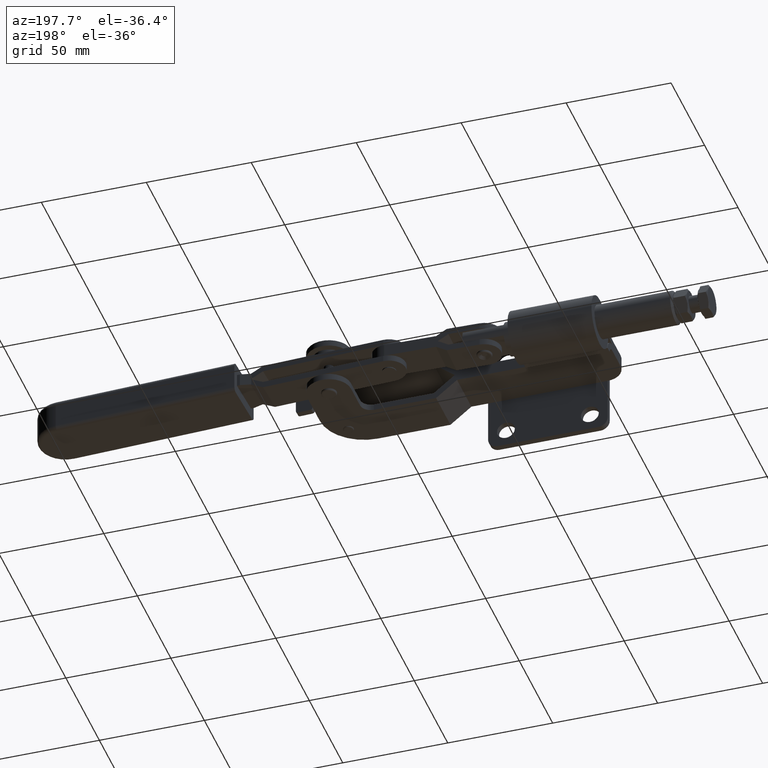
[diagram: clean part render]
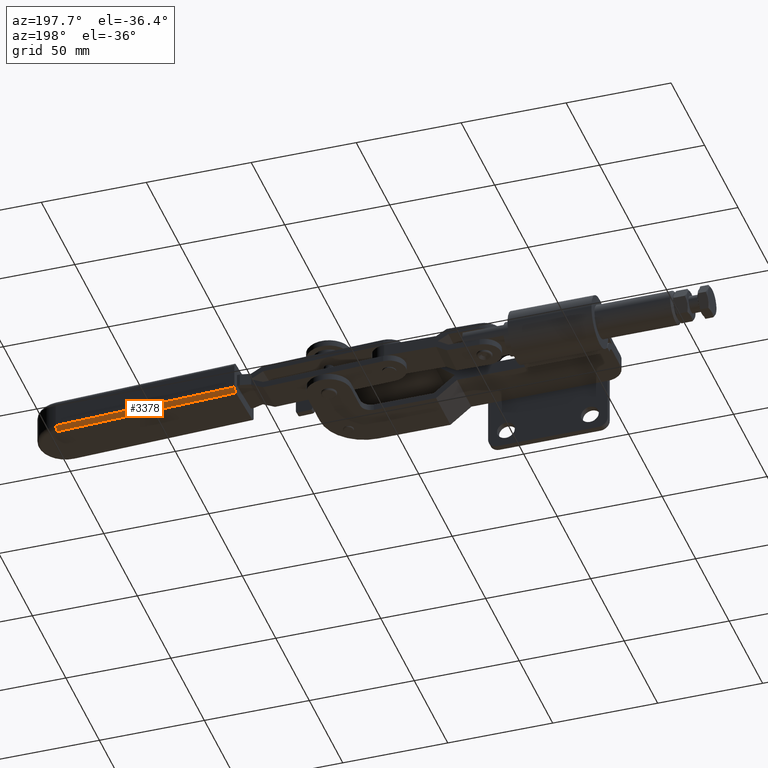
[diagram: same view with one face highlighted and labeled with its STEP entity id]
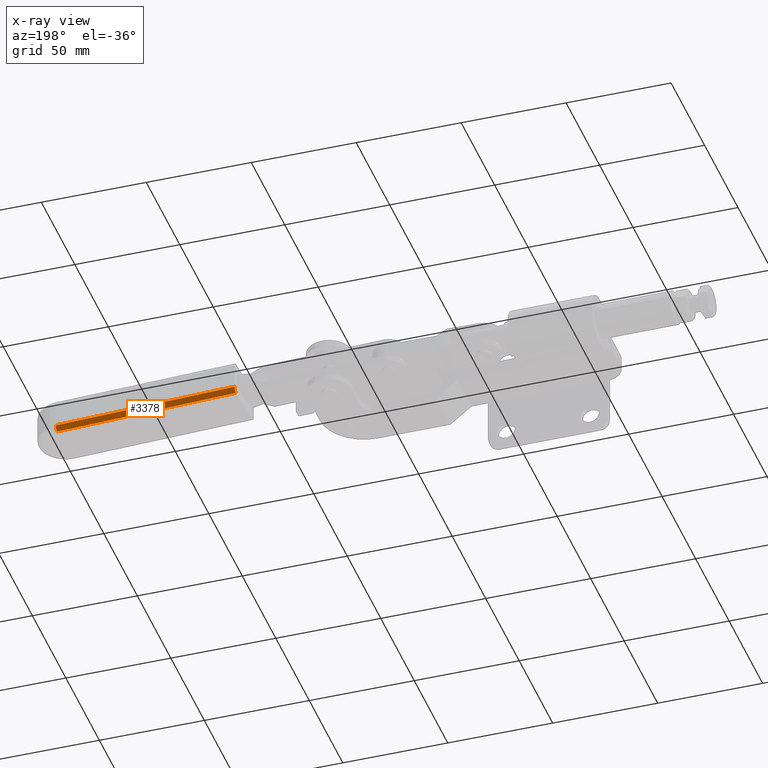
[diagram: x-ray of the same camera — body ghosted, the highlighted face saturated]
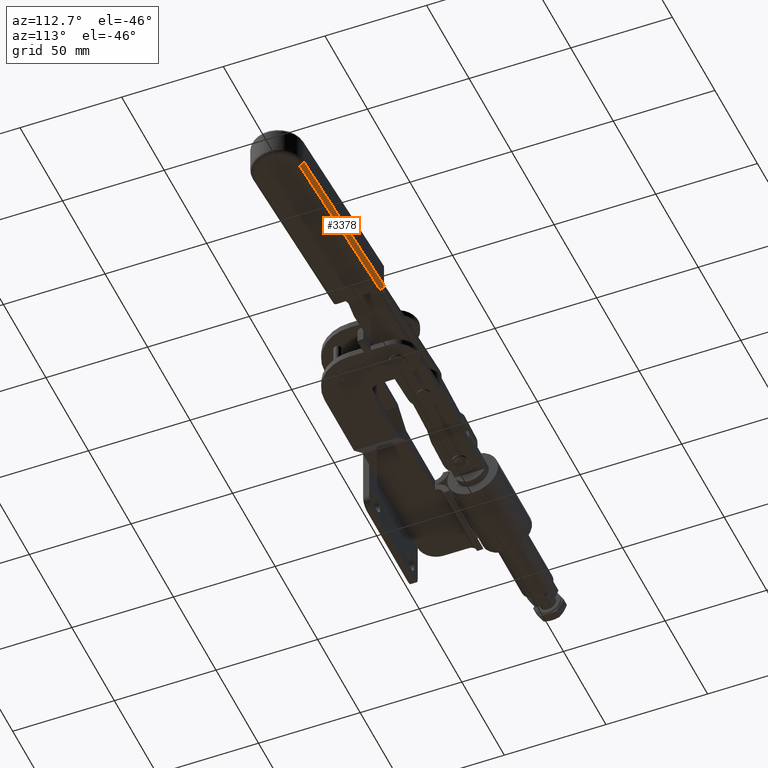
[diagram: same view with one face highlighted and labeled with its STEP entity id]
A machine part, auxiliary view. The second image highlights one B-rep face of the part: STEP entity #3378.
The next image is the same camera in x-ray: the body ghosted, the highlighted face saturated — about 0% of this face is hidden behind the body in this view.
A second angle (auxiliary view) of the same face is appended — the face is thin or edge-on in the first view.
In plain terms, the highlighted cylindrical surface (edge-blend (fillet) strip) has radius 2 mm, axis along (-0.9992, 0.041, 0).
Its self-contained STEP definition (entity closure, byte-faithful):
#51 = CIRCLE ( 'NONE', #1396, 1.999999999999998200 ) ;
#440 = VERTEX_POINT ( 'NONE', #610 ) ;
#610 = CARTESIAN_POINT ( 'NONE',  ( 170.5664895466685500, 54.00580295888057200, -16.98568153118885200 ) ) ;
#748 = CARTESIAN_POINT ( 'NONE',  ( 256.7114889799871700, 48.47083145945572400, -18.98568153118884900 ) ) ;
#776 = CYLINDRICAL_SURFACE ( 'NONE', #4946, 2.000000000000001300 ) ;
#809 = CARTESIAN_POINT ( 'NONE',  ( 170.5325044606354700, 53.17807322268488000, -18.98568153118883500 ) ) ;
#1022 = CARTESIAN_POINT ( 'NONE',  ( 256.7114889799871700, 48.47083145945572400, -16.98568153118885200 ) ) ;
#1110 = ORIENTED_EDGE ( 'NONE', *, *, #1517, .F. ) ;
#1198 = EDGE_LOOP ( 'NONE', ( #6883, #6335, #1868, #1110 ) ) ;
#1247 = CARTESIAN_POINT ( 'NONE',  ( 256.7934512923978300, 50.46915129855659600, -16.98568153118885200 ) ) ;
#1287 = DIRECTION ( 'NONE',  ( 0.9991599195504589100, -0.04098115620526661400, -2.881746486405707300E-017 ) ) ;
#1342 = CARTESIAN_POINT ( 'NONE',  ( 170.5664895466685500, 54.00580295888057200, -16.98568153118885200 ) ) ;
#1396 = AXIS2_PLACEMENT_3D ( 'NONE', #1022, #6071, #7809 ) ;
#1517 = EDGE_CURVE ( 'NONE', #6760, #7764, #7291, .T. ) ;
#1868 = ORIENTED_EDGE ( 'NONE', *, *, #5479, .T. ) ;
#1997 = LINE ( 'NONE', #2918, #3405 ) ;
#2024 =( BOUNDED_CURVE ( )  B_SPLINE_CURVE ( 3, ( #1342, #3753, #809, #5052 ),
 .UNSPECIFIED., .F., .T. ) 
 B_SPLINE_CURVE_WITH_KNOTS ( ( 4, 4 ),
 ( 3.141592653589791800, 4.712388980384675500 ),
 .UNSPECIFIED. ) 
 CURVE ( )  GEOMETRIC_REPRESENTATION_ITEM ( )  RATIONAL_B_SPLINE_CURVE ( ( 1.000000000000000000, 0.8047378541243680500, 0.8047378541243680500, 1.000000000000000000 ) ) 
 REPRESENTATION_ITEM ( '' )  );
#2336 = EDGE_CURVE ( 'NONE', #7084, #440, #1997, .T. ) ;
#2918 = CARTESIAN_POINT ( 'NONE',  ( 170.5664895466685500, 54.00580295888057200, -16.98568153118885200 ) ) ;
#2933 = DIRECTION ( 'NONE',  ( -0.9991599195504589100, 0.04098115620526661400, 2.881746486405707300E-017 ) ) ;
#2954 = DIRECTION ( 'NONE',  ( -0.9991599195504590200, 0.04098115620526662100, 2.881746486405707900E-017 ) ) ;
#3267 = CARTESIAN_POINT ( 'NONE',  ( 170.4844422910491100, 52.00748660377741600, -18.98568153118884500 ) ) ;
#3378 = ADVANCED_FACE ( 'NONE', ( #6193 ), #776, .T. ) ;
#3405 = VECTOR ( 'NONE', #2933, 1000.000000000000100 ) ;
#3753 = CARTESIAN_POINT ( 'NONE',  ( 170.5664895466685800, 54.00580295888055800, -18.15725440644264700 ) ) ;
#4218 = VECTOR ( 'NONE', #1287, 1000.000000000000100 ) ;
#4277 = CARTESIAN_POINT ( 'NONE',  ( 256.7114889799871700, 48.47083145945572400, -16.98568153118885200 ) ) ;
#4946 = AXIS2_PLACEMENT_3D ( 'NONE', #4277, #2954, #5931 ) ;
#5052 = CARTESIAN_POINT ( 'NONE',  ( 170.4844422910491100, 52.00748660377741600, -18.98568153118884500 ) ) ;
#5479 = EDGE_CURVE ( 'NONE', #7084, #7764, #51, .T. ) ;
#5931 = DIRECTION ( 'NONE',  ( 0.04098115620526640600, 0.9991599195504589100, 0.0000000000000000000 ) ) ;
#6071 = DIRECTION ( 'NONE',  ( -0.9991599195504591300, 0.04098115620526528900, 2.881746486405694300E-017 ) ) ;
#6193 = FACE_OUTER_BOUND ( 'NONE', #1198, .T. ) ;
#6335 = ORIENTED_EDGE ( 'NONE', *, *, #2336, .F. ) ;
#6661 = EDGE_CURVE ( 'NONE', #440, #6760, #2024, .T. ) ;
#6760 = VERTEX_POINT ( 'NONE', #3267 ) ;
#6883 = ORIENTED_EDGE ( 'NONE', *, *, #6661, .F. ) ;
#6961 = CARTESIAN_POINT ( 'NONE',  ( 256.7114889799871700, 48.47083145945572400, -18.98568153118884900 ) ) ;
#7084 = VERTEX_POINT ( 'NONE', #1247 ) ;
#7291 = LINE ( 'NONE', #748, #4218 ) ;
#7764 = VERTEX_POINT ( 'NONE', #6961 ) ;
#7809 = DIRECTION ( 'NONE',  ( 0.0000000000000000000, 0.0000000000000000000, 1.000000000000000000 ) ) ;